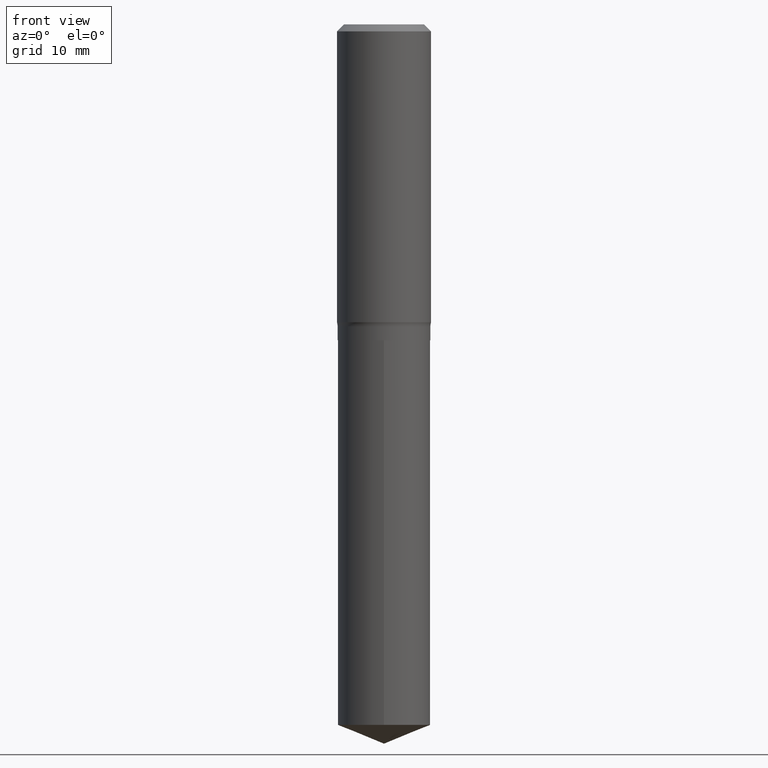
[diagram: clean part render]
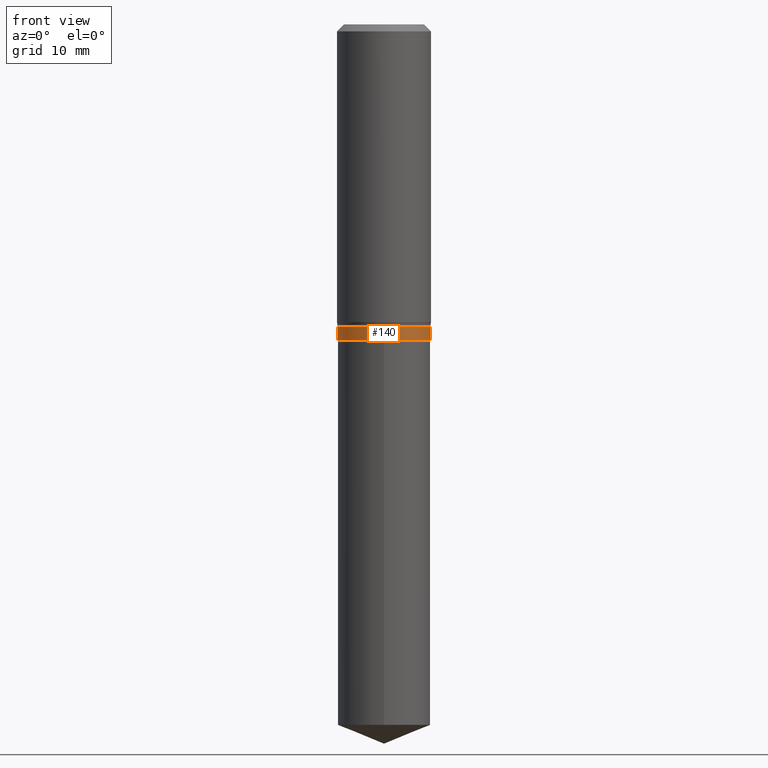
[diagram: same view with one face highlighted and labeled with its STEP entity id]
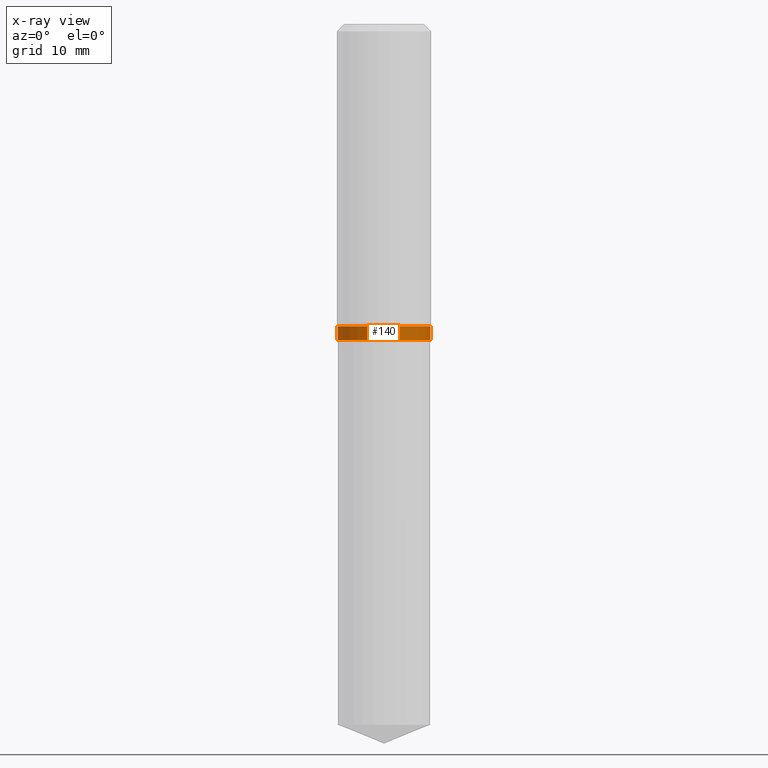
[diagram: x-ray of the same camera — body ghosted, the highlighted face saturated]
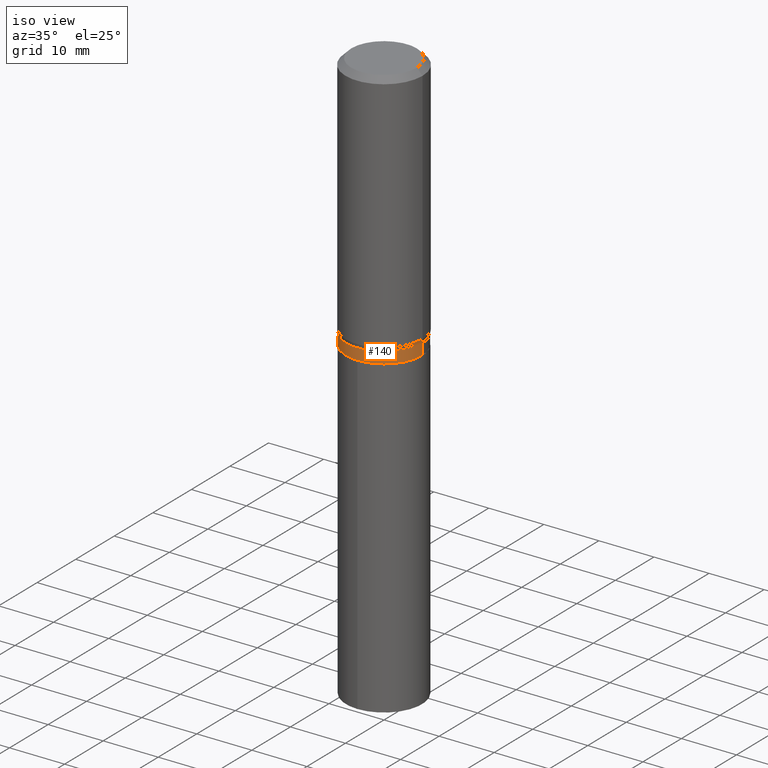
[diagram: same view with one face highlighted and labeled with its STEP entity id]
A machine part, front view. The second image highlights one B-rep face of the part: STEP entity #140.
The next image is the same camera in x-ray: the body ghosted, the highlighted face saturated — about 0% of this face is hidden behind the body in this view.
A second angle (iso view) of the same face is appended — the face is thin or edge-on in the first view.
In plain terms, the highlighted cylindrical surface (partial cylindrical patch) has radius 6.8999 mm, axis along (-0, 0, 1).
Its self-contained STEP definition (entity closure, byte-faithful):
#13 = VERTEX_POINT ( 'NONE', #78 ) ;
#58 = CARTESIAN_POINT ( 'NONE',  ( 0.2716500000000000026, -8.073003151673115070E-15, -1.768900000000000139 ) ) ;
#60 = DIRECTION ( 'NONE',  ( 1.000000000000000000, -6.982962677686266711E-15, 4.876176775795936353E-29 ) ) ;
#66 = VERTEX_POINT ( 'NONE', #58 ) ;
#72 = CARTESIAN_POINT ( 'NONE',  ( 4.523872744561885153E-29, -6.458891328725936072E-15, -1.849900000000000322 ) ) ;
#78 = CARTESIAN_POINT ( 'NONE',  ( 0.2716499999999999471, -8.355813140119411270E-15, -1.849900000000000322 ) ) ;
#85 = CARTESIAN_POINT ( 'NONE',  ( 4.325789771260888308E-29, -6.176081340279640661E-15, -1.768900000000000139 ) ) ;
#106 = AXIS2_PLACEMENT_3D ( 'NONE', #85, #353, #386 ) ;
#119 = CARTESIAN_POINT ( 'NONE',  ( -0.2716499999999999471, 1.930189341692311779E-15, -1.336228717267745096E-29 ) ) ;
#140 = ADVANCED_FACE ( 'NONE', ( #170 ), #474, .T. ) ;
#147 = LINE ( 'NONE', #157, #414 ) ;
#157 = CARTESIAN_POINT ( 'NONE',  ( 0.2716499999999999471, -1.896921811393474014E-15, 1.324613421144965822E-29 ) ) ;
#170 = FACE_OUTER_BOUND ( 'NONE', #462, .T. ) ;
#175 = CARTESIAN_POINT ( 'NONE',  ( -0.2716499999999999471, -4.387296992810476194E-15, -1.849900000000000322 ) ) ;
#181 = DIRECTION ( 'NONE',  ( -2.445468806185136597E-29, 3.491481338843145583E-15, 1.000000000000000000 ) ) ;
#193 = ORIENTED_EDGE ( 'NONE', *, *, #437, .F. ) ;
#195 = LINE ( 'NONE', #119, #280 ) ;
#212 = CARTESIAN_POINT ( 'NONE',  ( -0.2716500000000000026, -4.387296992810476194E-15, -1.768900000000000139 ) ) ;
#255 = DIRECTION ( 'NONE',  ( 1.000000000000000000, -6.982962677686268288E-15, 0.000000000000000000 ) ) ;
#256 = ORIENTED_EDGE ( 'NONE', *, *, #469, .F. ) ;
#280 = VECTOR ( 'NONE', #315, 39.37007874015748143 ) ;
#289 = AXIS2_PLACEMENT_3D ( 'NONE', #434, #404, #60 ) ;
#307 = CIRCLE ( 'NONE', #470, 0.2716499999999999471 ) ;
#315 = DIRECTION ( 'NONE',  ( -2.445468806185136877E-29, 3.491481338843145188E-15, 1.000000000000000000 ) ) ;
#328 = EDGE_CURVE ( 'NONE', #350, #13, #307, .T. ) ;
#344 = DIRECTION ( 'NONE',  ( -2.445468806185136877E-29, 3.491481338843145188E-15, 1.000000000000000000 ) ) ;
#350 = VERTEX_POINT ( 'NONE', #175 ) ;
#353 = DIRECTION ( 'NONE',  ( -2.445468806185136597E-29, 3.491481338843145583E-15, 1.000000000000000000 ) ) ;
#382 = VERTEX_POINT ( 'NONE', #212 ) ;
#386 = DIRECTION ( 'NONE',  ( 1.000000000000000000, -6.982962677686266711E-15, 0.000000000000000000 ) ) ;
#404 = DIRECTION ( 'NONE',  ( -2.445468806185136597E-29, 3.491481338843145583E-15, 1.000000000000000000 ) ) ;
#414 = VECTOR ( 'NONE', #344, 39.37007874015748143 ) ;
#434 = CARTESIAN_POINT ( 'NONE',  ( 0.000000000000000000, 0.000000000000000000, 0.000000000000000000 ) ) ;
#437 = EDGE_CURVE ( 'NONE', #382, #66, #443, .T. ) ;
#440 = ORIENTED_EDGE ( 'NONE', *, *, #445, .T. ) ;
#443 = CIRCLE ( 'NONE', #106, 0.2716500000000000026 ) ;
#445 = EDGE_CURVE ( 'NONE', #13, #66, #147, .T. ) ;
#457 = ORIENTED_EDGE ( 'NONE', *, *, #328, .T. ) ;
#462 = EDGE_LOOP ( 'NONE', ( #256, #457, #440, #193 ) ) ;
#469 = EDGE_CURVE ( 'NONE', #350, #382, #195, .T. ) ;
#470 = AXIS2_PLACEMENT_3D ( 'NONE', #72, #181, #255 ) ;
#474 = CYLINDRICAL_SURFACE ( 'NONE', #289, 0.2716499999999999471 ) ;